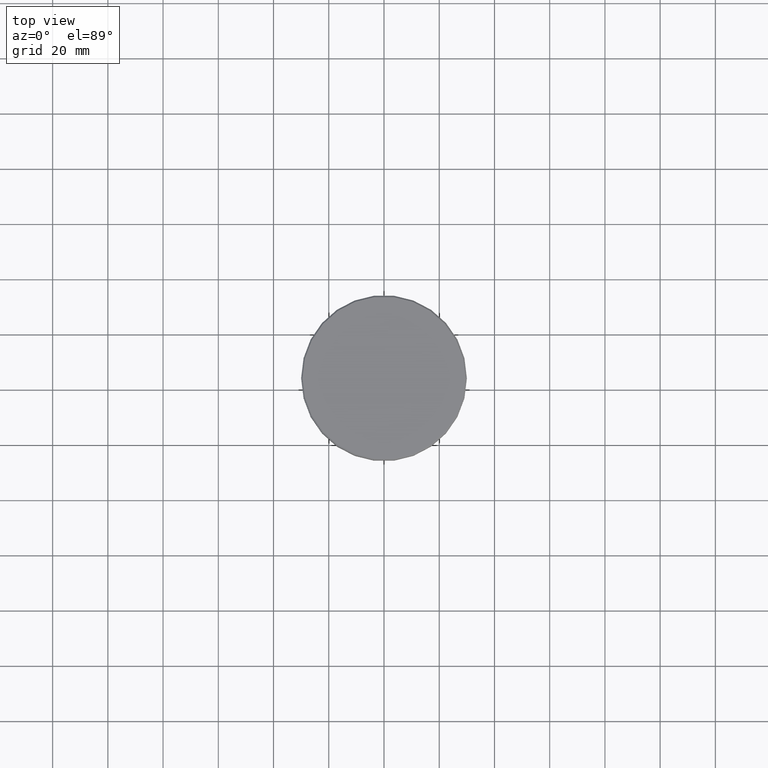
[diagram: clean part render]
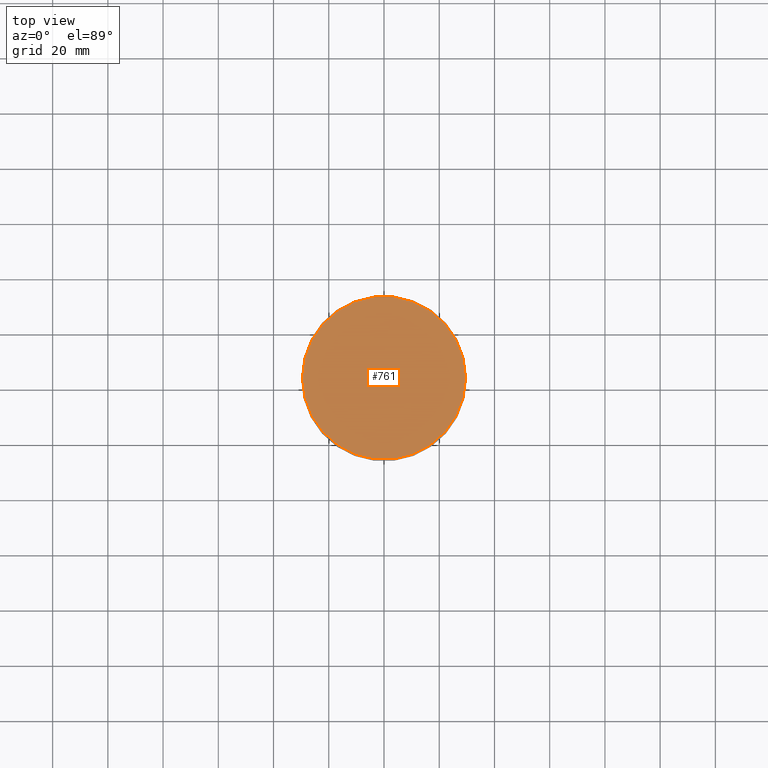
[diagram: same view with one face highlighted and labeled with its STEP entity id]
A machine part, top view. The second image highlights one B-rep face of the part: STEP entity #761.
In plain terms, the highlighted planar face has unit normal (0, -0, 1).
Its self-contained STEP definition (entity closure, byte-faithful):
#14 = DIRECTION ( 'NONE',  ( -0.000000000000000000, -0.000000000000000000, 1.000000000000000000 ) ) ;
#19 = CARTESIAN_POINT ( 'NONE',  ( 0.000000000000000000, 0.000000000000000000, 0.000000000000000000 ) ) ;
#202 = CARTESIAN_POINT ( 'NONE',  ( 29.50000000000000000, 3.643324227463375391E-15, 0.000000000000000000 ) ) ;
#252 = AXIS2_PLACEMENT_3D ( 'NONE', #1163, #14, #385 ) ;
#264 = VERTEX_POINT ( 'NONE', #202 ) ;
#274 = DIRECTION ( 'NONE',  ( 1.000000000000000000, 0.000000000000000000, 0.000000000000000000 ) ) ;
#288 = CARTESIAN_POINT ( 'NONE',  ( -29.50000000000000000, 0.000000000000000000, 0.000000000000000000 ) ) ;
#371 = ORIENTED_EDGE ( 'NONE', *, *, #714, .T. ) ;
#385 = DIRECTION ( 'NONE',  ( 1.000000000000000000, 0.000000000000000000, 0.000000000000000000 ) ) ;
#454 = EDGE_LOOP ( 'NONE', ( #834, #371 ) ) ;
#489 = FACE_OUTER_BOUND ( 'NONE', #454, .T. ) ;
#610 = CIRCLE ( 'NONE', #252, 29.50000000000000000 ) ;
#637 = AXIS2_PLACEMENT_3D ( 'NONE', #19, #643, #753 ) ;
#643 = DIRECTION ( 'NONE',  ( 0.000000000000000000, -0.000000000000000000, 1.000000000000000000 ) ) ;
#675 = EDGE_CURVE ( 'NONE', #765, #264, #610, .T. ) ;
#714 = EDGE_CURVE ( 'NONE', #264, #765, #1125, .T. ) ;
#747 = PLANE ( 'NONE',  #637 ) ;
#753 = DIRECTION ( 'NONE',  ( 1.000000000000000000, 0.000000000000000000, 0.000000000000000000 ) ) ;
#761 = ADVANCED_FACE ( 'NONE', ( #489 ), #747, .T. ) ;
#765 = VERTEX_POINT ( 'NONE', #288 ) ;
#834 = ORIENTED_EDGE ( 'NONE', *, *, #675, .T. ) ;
#906 = DIRECTION ( 'NONE',  ( -0.000000000000000000, -0.000000000000000000, 1.000000000000000000 ) ) ;
#1103 = CARTESIAN_POINT ( 'NONE',  ( 0.000000000000000000, 0.000000000000000000, 0.000000000000000000 ) ) ;
#1125 = CIRCLE ( 'NONE', #1154, 29.50000000000000000 ) ;
#1154 = AXIS2_PLACEMENT_3D ( 'NONE', #1103, #906, #274 ) ;
#1163 = CARTESIAN_POINT ( 'NONE',  ( 0.000000000000000000, 0.000000000000000000, 0.000000000000000000 ) ) ;